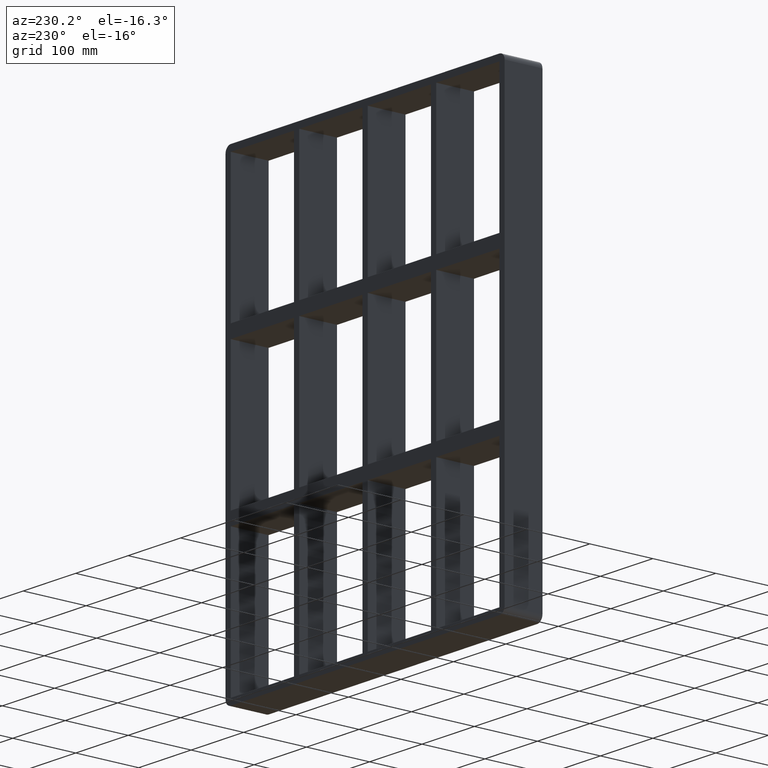
[diagram: clean part render]
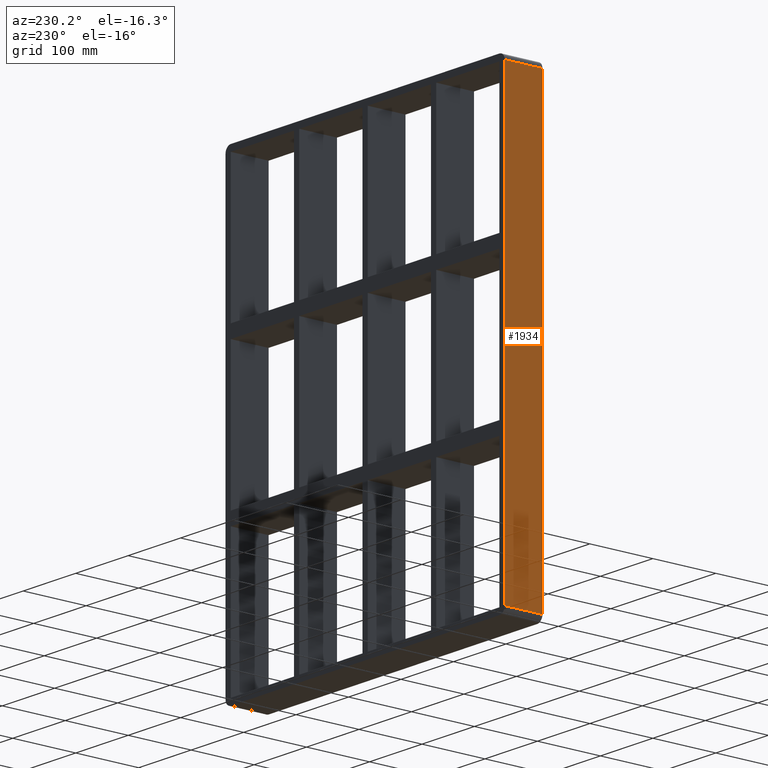
[diagram: same view with one face highlighted and labeled with its STEP entity id]
A machine part, auxiliary view. The second image highlights one B-rep face of the part: STEP entity #1934.
In plain terms, the highlighted planar face has unit normal (-1, 0, 0).
Its self-contained STEP definition (entity closure, byte-faithful):
#722=CARTESIAN_POINT('',(-266.00000000000006,57.0,-347.0));
#723=VERTEX_POINT('',#722);
#731=CARTESIAN_POINT('',(-266.00000000000006,57.0,347.0));
#732=VERTEX_POINT('',#731);
#733=CARTESIAN_POINT('',(-266.00000000000006,57.0,-347.0));
#734=DIRECTION('',(0.0,0.0,1.0));
#735=VECTOR('',#734,694.0);
#736=LINE('',#733,#735);
#737=EDGE_CURVE('',#723,#732,#736,.T.);
#1366=CARTESIAN_POINT('',(-266.00000000000006,-3.0,347.0));
#1367=VERTEX_POINT('',#1366);
#1375=CARTESIAN_POINT('',(-266.00000000000006,-3.0,-347.0));
#1376=VERTEX_POINT('',#1375);
#1377=CARTESIAN_POINT('',(-266.00000000000006,-3.0,347.0));
#1378=DIRECTION('',(0.0,0.0,-1.0));
#1379=VECTOR('',#1378,694.0);
#1380=LINE('',#1377,#1379);
#1381=EDGE_CURVE('',#1367,#1376,#1380,.T.);
#1909=CARTESIAN_POINT('',(-266.00000000000006,-3.0,-347.0));
#1910=DIRECTION('',(0.0,1.0,0.0));
#1911=VECTOR('',#1910,60.0);
#1912=LINE('',#1909,#1911);
#1913=EDGE_CURVE('',#1376,#723,#1912,.T.);
#1918=CARTESIAN_POINT('',(-266.00000000000006,0.0,-357.0));
#1919=DIRECTION('',(-1.0,0.0,0.0));
#1920=DIRECTION('',(0.0,0.0,1.0));
#1921=AXIS2_PLACEMENT_3D('',#1918,#1919,#1920);
#1922=PLANE('',#1921);
#1923=ORIENTED_EDGE('',*,*,#1913,.F.);
#1924=ORIENTED_EDGE('',*,*,#1381,.F.);
#1925=CARTESIAN_POINT('',(-266.00000000000006,57.0,347.0));
#1926=DIRECTION('',(0.0,-1.0,0.0));
#1927=VECTOR('',#1926,60.0);
#1928=LINE('',#1925,#1927);
#1929=EDGE_CURVE('',#732,#1367,#1928,.T.);
#1930=ORIENTED_EDGE('',*,*,#1929,.F.);
#1931=ORIENTED_EDGE('',*,*,#737,.F.);
#1932=EDGE_LOOP('',(#1923,#1924,#1930,#1931));
#1933=FACE_OUTER_BOUND('',#1932,.T.);
#1934=ADVANCED_FACE('',(#1933),#1922,.T.);